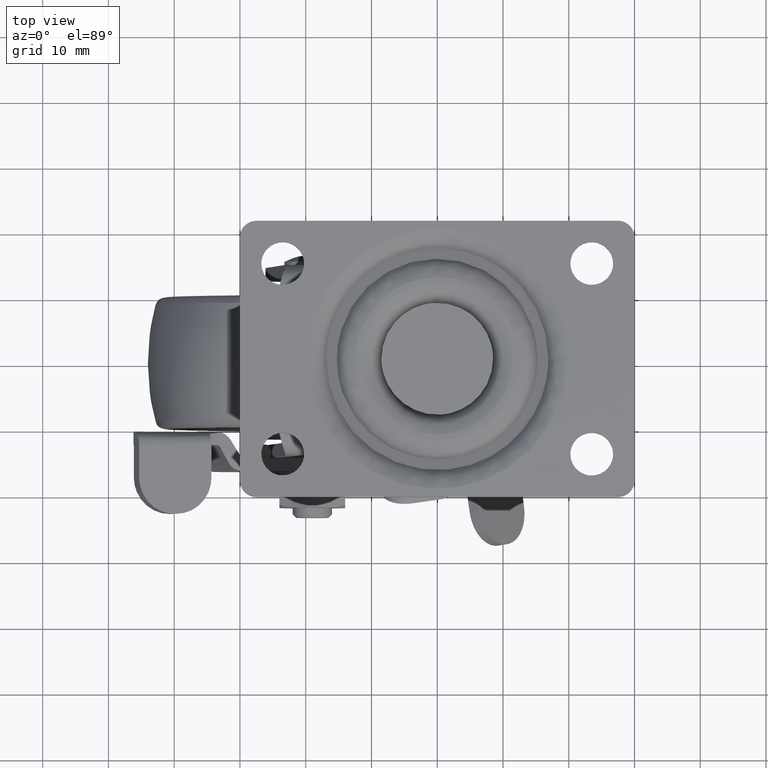
[diagram: clean part render]
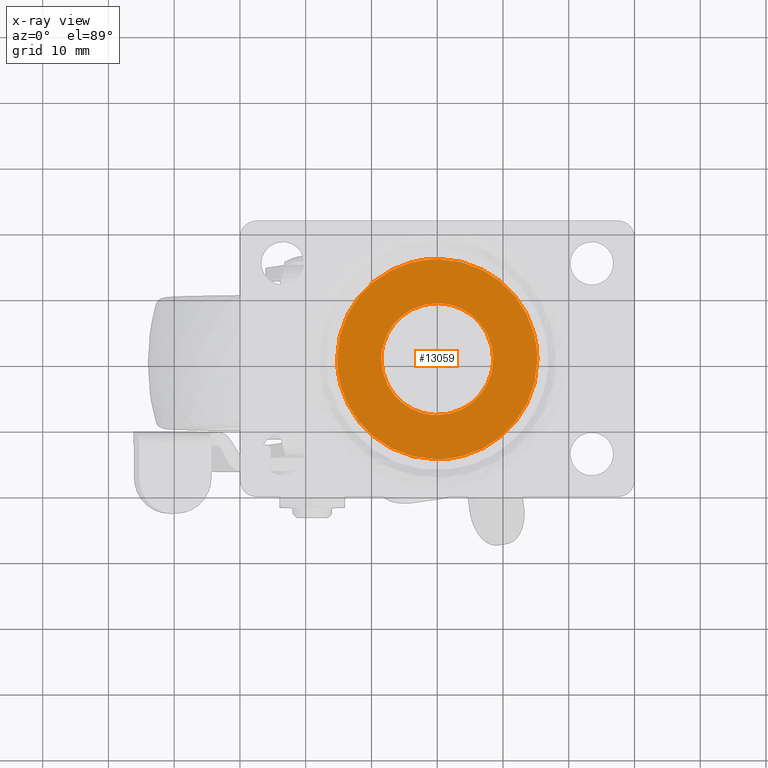
[diagram: x-ray — body ghosted, one internal face saturated and labeled with its STEP entity id]
A machine part, top view, then the same camera in x-ray: the body is ghosted and one INTERNAL B-rep face — a face not visible from any outside direction — is saturated and labeled: STEP entity #13059.
In plain terms, the highlighted face is a freeform B-spline surface patch.
Its self-contained STEP definition (entity closure, byte-faithful):
#12922=CARTESIAN_POINT('',(-16.749742398668840,-16.749104649360842,-3.968000000000105));
#12923=CARTESIAN_POINT('',(16.749743215585099,-16.749104649360842,-3.968000000000105));
#12924=CARTESIAN_POINT('',(-16.749742398668840,16.749103560139140,-3.968000000000105));
#12925=CARTESIAN_POINT('',(16.749743215585099,16.749103560139140,-3.968000000000105));
#12926=B_SPLINE_SURFACE_WITH_KNOTS('',1,1,((#12922,#12924),(#12923,#12925)),.UNSPECIFIED.,.F.,.F.,.U.,(2,2),(2,2),(0.0,33.499485614253942),(0.0,33.498208209499978),.UNSPECIFIED.);
#12927=CARTESIAN_POINT('',(-0.132891373899589,-15.227843148315589,-3.968000000000644));
#12928=VERTEX_POINT('',#12927);
#12929=CARTESIAN_POINT('',(-15.228423000000101,0.0,-3.968000000000105));
#12930=VERTEX_POINT('',#12929);
#12931=CARTESIAN_POINT('',(-0.132891373899589,-15.227843148315594,-3.968000000000643));
#12932=CARTESIAN_POINT('',(-15.228423000000106,-15.096106439577186,-3.968000000000374));
#12933=CARTESIAN_POINT('',(-15.228423000000101,0.0,-3.968000000000105));
#12941=(BOUNDED_CURVE()B_SPLINE_CURVE(2,(#12931,#12932,#12933),.UNSPECIFIED.,.F.,.U.)B_SPLINE_CURVE_WITH_KNOTS((3,3),(0.751539894335055,1.0),.UNSPECIFIED.)CURVE()GEOMETRIC_REPRESENTATION_ITEM()RATIONAL_B_SPLINE_CURVE((0.996414028100250,0.708910879620254,1.0))REPRESENTATION_ITEM(''));
#12942=EDGE_CURVE('',#12928,#12930,#12941,.T.);
#12943=ORIENTED_EDGE('',*,*,#12942,.F.);
#12944=CARTESIAN_POINT('',(15.228423000000101,0.0,-3.968000000000105));
#12945=VERTEX_POINT('',#12944);
#12946=CARTESIAN_POINT('',(15.228423000000101,0.0,-3.968000000000105));
#12947=CARTESIAN_POINT('',(15.228423000000101,-15.228423000000541,-3.968000000000373));
#12948=CARTESIAN_POINT('',(-6.715304E-015,-15.228423000000980,-3.968000000000642));
#12949=CARTESIAN_POINT('',(-0.066446951997962,-15.228423000000989,-3.968000000000643));
#12950=CARTESIAN_POINT('',(-0.132891373899589,-15.227843148315594,-3.968000000000643));
#12958=(BOUNDED_CURVE()B_SPLINE_CURVE(2,(#12946,#12947,#12948,#12949,#12950),.UNSPECIFIED.,.F.,.U.)B_SPLINE_CURVE_WITH_KNOTS((3,2,3),(0.500000000000000,0.750000000000000,0.751539894335055),.UNSPECIFIED.)CURVE()GEOMETRIC_REPRESENTATION_ITEM()RATIONAL_B_SPLINE_CURVE((1.0,0.707106781186548,1.0,0.998195901566293,0.996414028100250))REPRESENTATION_ITEM(''));
#12959=EDGE_CURVE('',#12945,#12928,#12958,.T.);
#12960=ORIENTED_EDGE('',*,*,#12959,.F.);
#12961=CARTESIAN_POINT('',(0.132891373899594,15.227843148315589,-3.968000000000643));
#12962=VERTEX_POINT('',#12961);
#12963=CARTESIAN_POINT('',(0.132891373899594,15.227843148315586,-3.968000000000643));
#12964=CARTESIAN_POINT('',(15.228423000000104,15.096106439577168,-3.968000000000374));
#12965=CARTESIAN_POINT('',(15.228423000000101,0.0,-3.968000000000105));
#12973=(BOUNDED_CURVE()B_SPLINE_CURVE(2,(#12963,#12964,#12965),.UNSPECIFIED.,.F.,.U.)B_SPLINE_CURVE_WITH_KNOTS((3,3),(0.251539894335055,0.500000000000000),.UNSPECIFIED.)CURVE()GEOMETRIC_REPRESENTATION_ITEM()RATIONAL_B_SPLINE_CURVE((0.996414028100250,0.708910879620255,1.0))REPRESENTATION_ITEM(''));
#12974=EDGE_CURVE('',#12962,#12945,#12973,.T.);
#12975=ORIENTED_EDGE('',*,*,#12974,.F.);
#12976=CARTESIAN_POINT('',(-15.228423000000101,0.0,-3.968000000000105));
#12977=CARTESIAN_POINT('',(-15.228423000000101,15.228423000000541,-3.968000000000371));
#12978=CARTESIAN_POINT('',(7.268004E-015,15.228423000000980,-3.968000000000641));
#12979=CARTESIAN_POINT('',(0.066446951997965,15.228423000000980,-3.968000000000642));
#12980=CARTESIAN_POINT('',(0.132891373899594,15.227843148315586,-3.968000000000643));
#12988=(BOUNDED_CURVE()B_SPLINE_CURVE(2,(#12976,#12977,#12978,#12979,#12980),.UNSPECIFIED.,.F.,.U.)B_SPLINE_CURVE_WITH_KNOTS((3,2,3),(0.0,0.250000000000000,0.251539894335055),.UNSPECIFIED.)CURVE()GEOMETRIC_REPRESENTATION_ITEM()RATIONAL_B_SPLINE_CURVE((1.0,0.707106781186548,1.0,0.998195901566293,0.996414028100250))REPRESENTATION_ITEM(''));
#12989=EDGE_CURVE('',#12930,#12962,#12988,.T.);
#12990=ORIENTED_EDGE('',*,*,#12989,.F.);
#12991=EDGE_LOOP('',(#12943,#12960,#12975,#12990));
#12992=FACE_OUTER_BOUND('',#12991,.T.);
#12993=CARTESIAN_POINT('',(8.499993000000002,7.105427E-015,-3.968000000000105));
#12994=VERTEX_POINT('',#12993);
#12995=CARTESIAN_POINT('',(0.074175490695283,8.499669346311606,-3.968000000000105));
#12996=VERTEX_POINT('',#12995);
#12997=CARTESIAN_POINT('',(8.499993000000002,7.105427E-015,-3.968000000000105));
#12998=CARTESIAN_POINT('',(8.499993000000004,8.426138350834382,-3.968000000000105));
#12999=CARTESIAN_POINT('',(0.074175490695282,8.499669346311608,-3.968000000000104));
#13007=(BOUNDED_CURVE()B_SPLINE_CURVE(2,(#12997,#12998,#12999),.UNSPECIFIED.,.F.,.U.)B_SPLINE_CURVE_WITH_KNOTS((3,3),(0.0,0.248460105664083),.UNSPECIFIED.)CURVE()GEOMETRIC_REPRESENTATION_ITEM()RATIONAL_B_SPLINE_CURVE((1.0,0.708910879621264,0.996414028098255))REPRESENTATION_ITEM(''));
#13008=EDGE_CURVE('',#12994,#12996,#13007,.T.);
#13009=ORIENTED_EDGE('',*,*,#13008,.F.);
#13010=CARTESIAN_POINT('',(-0.074175490695283,-8.499669346311599,-3.968000000000105));
#13011=VERTEX_POINT('',#13010);
#13012=CARTESIAN_POINT('',(-0.074175490695282,-8.499669346311595,-3.968000000000104));
#13013=CARTESIAN_POINT('',(-0.037088451454935,-8.499992999999993,-3.968000000000106));
#13014=CARTESIAN_POINT('',(0.0,-8.499992999999995,-3.968000000000105));
#13015=CARTESIAN_POINT('',(8.499993000000002,-8.499992999999995,-3.968000000000106));
#13016=CARTESIAN_POINT('',(8.499993000000002,7.105427E-015,-3.968000000000105));
#13024=(BOUNDED_CURVE()B_SPLINE_CURVE(2,(#13012,#13013,#13014,#13015,#13016),.UNSPECIFIED.,.F.,.U.)B_SPLINE_CURVE_WITH_KNOTS((3,2,3),(0.748460105664083,0.750000000000000,1.0),.UNSPECIFIED.)CURVE()GEOMETRIC_REPRESENTATION_ITEM()RATIONAL_B_SPLINE_CURVE((0.996414028098255,0.998195901565283,1.0,0.707106781186547,1.0))REPRESENTATION_ITEM(''));
#13025=EDGE_CURVE('',#13011,#12994,#13024,.T.);
#13026=ORIENTED_EDGE('',*,*,#13025,.F.);
#13027=CARTESIAN_POINT('',(-8.499993000000002,7.105427E-015,-3.968000000000105));
#13028=VERTEX_POINT('',#13027);
#13029=CARTESIAN_POINT('',(-8.499993000000002,7.105427E-015,-3.968000000000105));
#13030=CARTESIAN_POINT('',(-8.499993000000004,-8.426138350834371,-3.968000000000105));
#13031=CARTESIAN_POINT('',(-0.074175490695282,-8.499669346311595,-3.968000000000104));
#13039=(BOUNDED_CURVE()B_SPLINE_CURVE(2,(#13029,#13030,#13031),.UNSPECIFIED.,.F.,.U.)B_SPLINE_CURVE_WITH_KNOTS((3,3),(0.500000000000000,0.748460105664083),.UNSPECIFIED.)CURVE()GEOMETRIC_REPRESENTATION_ITEM()RATIONAL_B_SPLINE_CURVE((1.0,0.708910879621264,0.996414028098255))REPRESENTATION_ITEM(''));
#13040=EDGE_CURVE('',#13028,#13011,#13039,.T.);
#13041=ORIENTED_EDGE('',*,*,#13040,.F.);
#13042=CARTESIAN_POINT('',(0.074175490695282,8.499669346311608,-3.968000000000104));
#13043=CARTESIAN_POINT('',(0.037088451454935,8.499993000000005,-3.968000000000106));
#13044=CARTESIAN_POINT('',(0.0,8.499993000000007,-3.968000000000105));
#13045=CARTESIAN_POINT('',(-8.499993000000002,8.499993000000007,-3.968000000000106));
#13046=CARTESIAN_POINT('',(-8.499993000000002,7.105427E-015,-3.968000000000105));
#13054=(BOUNDED_CURVE()B_SPLINE_CURVE(2,(#13042,#13043,#13044,#13045,#13046),.UNSPECIFIED.,.F.,.U.)B_SPLINE_CURVE_WITH_KNOTS((3,2,3),(0.248460105664083,0.250000000000000,0.500000000000000),.UNSPECIFIED.)CURVE()GEOMETRIC_REPRESENTATION_ITEM()RATIONAL_B_SPLINE_CURVE((0.996414028098255,0.998195901565283,1.0,0.707106781186547,1.0))REPRESENTATION_ITEM(''));
#13055=EDGE_CURVE('',#12996,#13028,#13054,.T.);
#13056=ORIENTED_EDGE('',*,*,#13055,.F.);
#13057=EDGE_LOOP('',(#13009,#13026,#13041,#13056));
#13058=FACE_BOUND('',#13057,.T.);
#13059=ADVANCED_FACE('',(#12992,#13058),#12926,.T.);